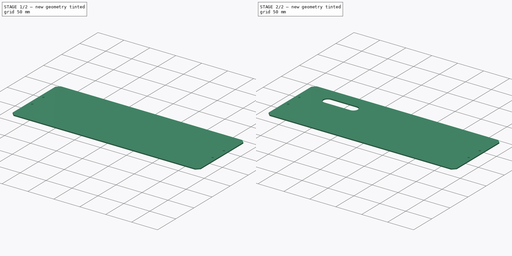
[diagram: build sequence overview — one tinted view per stage of 2, left to right]
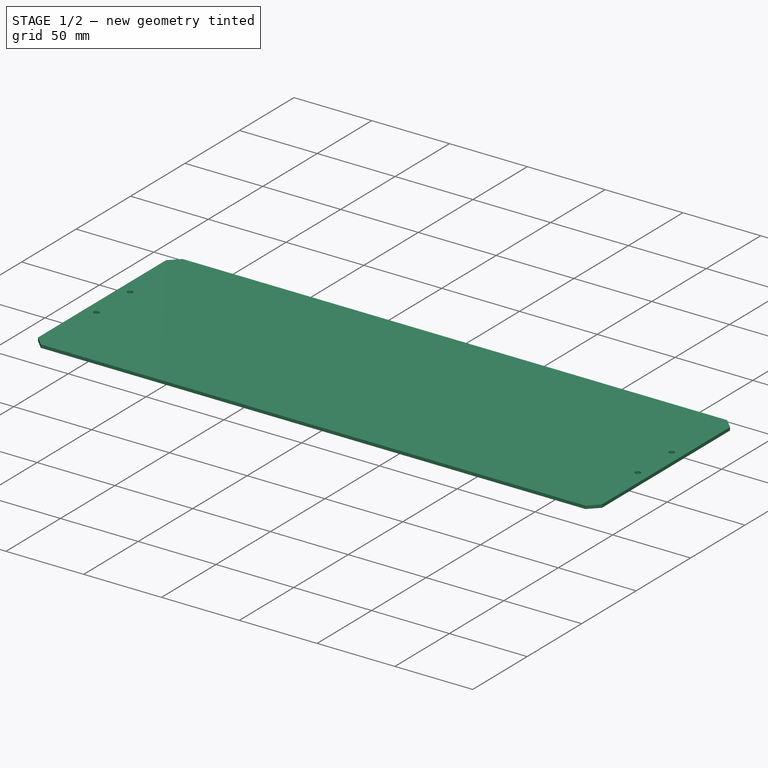
[diagram: stage 1 of 2 — iso view after this stage's code; geometry added in this stage tinted green]
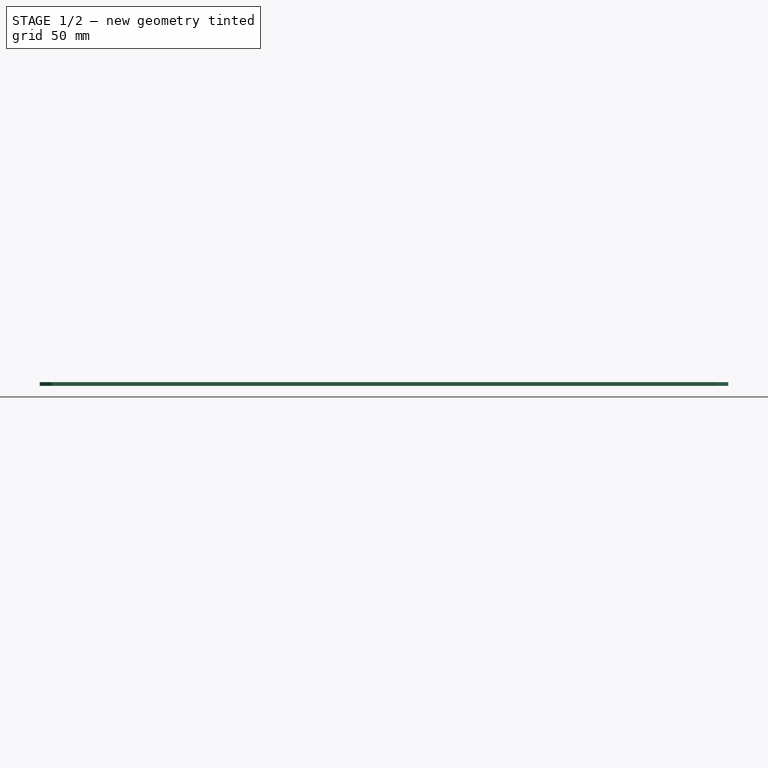
[diagram: stage 1 of 2 — front view after this stage's code; geometry added in this stage tinted green]
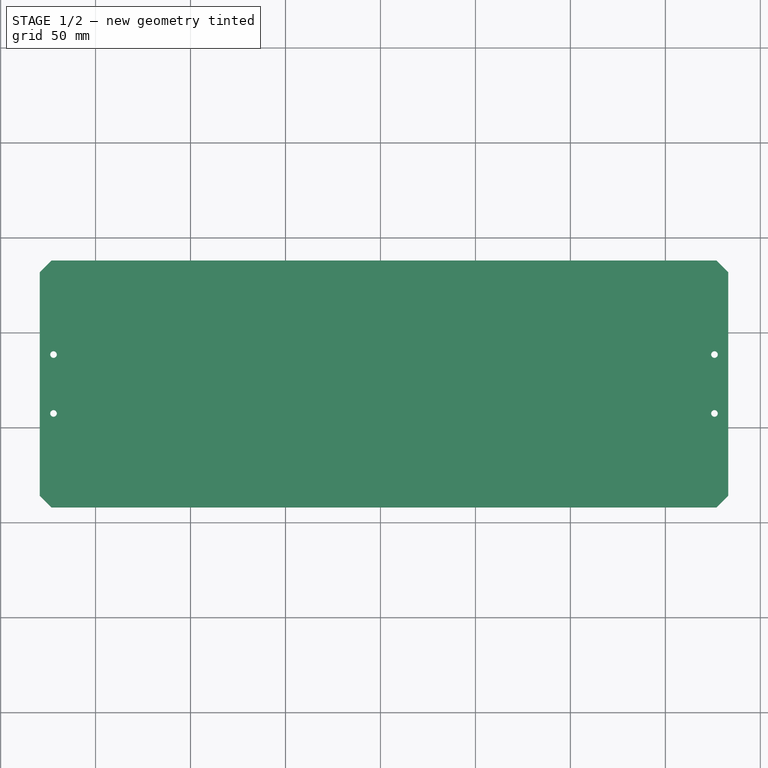
[diagram: stage 1 of 2 — top view after this stage's code; geometry added in this stage tinted green]
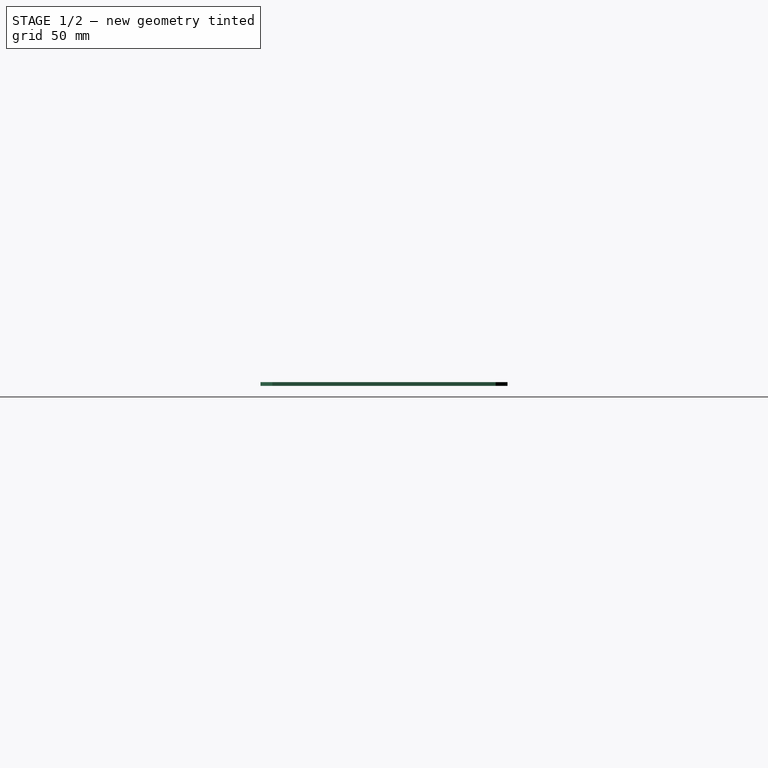
[diagram: stage 1 of 2 — right view after this stage's code; geometry added in this stage tinted green]
FCSTD DOCUMENT  (FreeCAD 0.20R29603 (Git))
Label: DCT_BOX
License: All rights reserved
LicenseURL: http://en.wikipedia.org/wiki/All_rights_reserved
objects: Part::Feature×1, PartDesign::FeatureBase×1, Sketcher::SketchObject×1, PartDesign::Pocket×1, PartDesign::Body×1
note: 6 computed .brp shape members not serialized (recipe doc carries the construction recipe); baked Part::Feature solids carry a one-line shape summary decoded from their .brp

FEATURE [Part::Feature] Part__Feature041  label="M5403038"
  Placement = pos=(-66.6357,-119.264,69.9309) rot=(0,0,1;0rad)
  shape: bbox 362.5 x 130 x 2 mm, 14 faces (baked)
FEATURE [PartDesign::FeatureBase] Clone
  BaseFeature = -> Part__Feature041
  Placement = pos=(-66.6357,-119.264,69.9309) rot=(0,0,1;0rad)
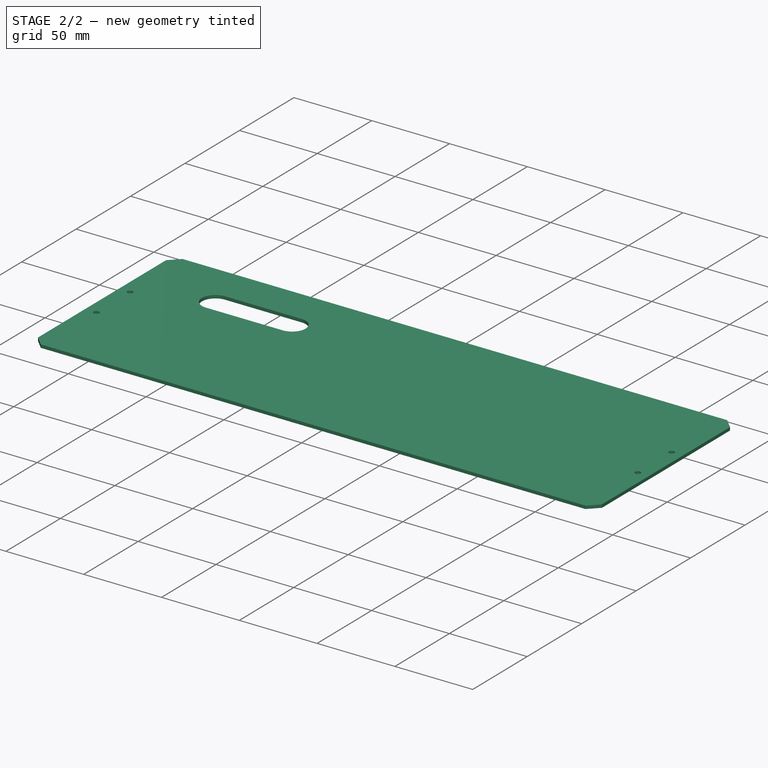
[diagram: stage 2 of 2 — iso view after this stage's code; geometry added in this stage tinted green]
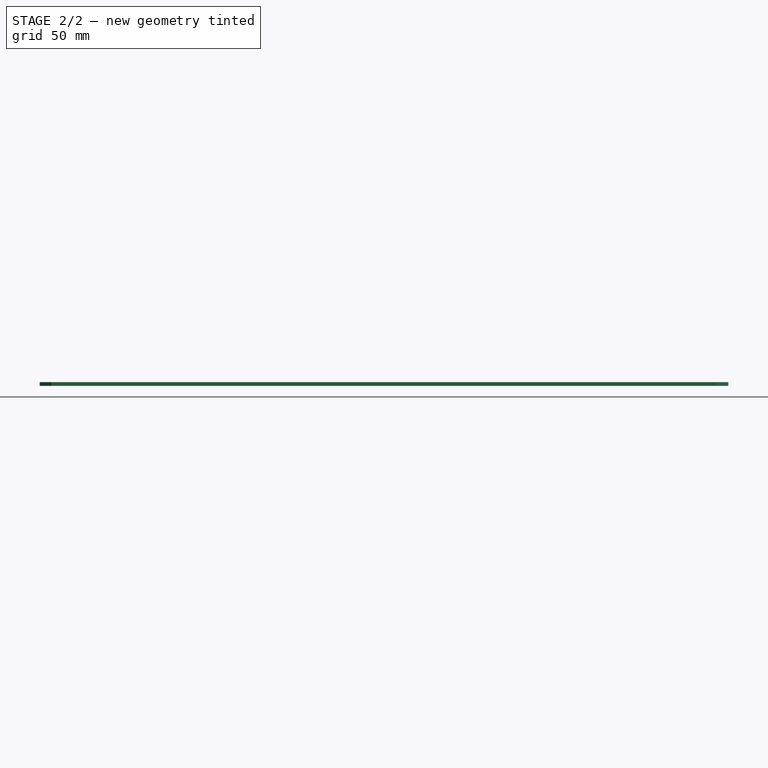
[diagram: stage 2 of 2 — front view after this stage's code; geometry added in this stage tinted green]
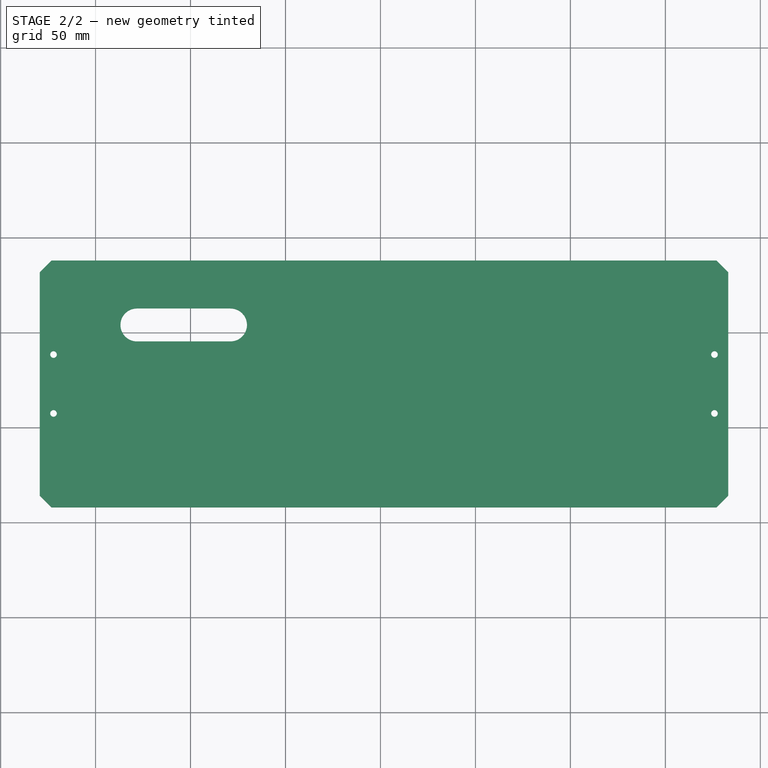
[diagram: stage 2 of 2 — top view after this stage's code; geometry added in this stage tinted green]
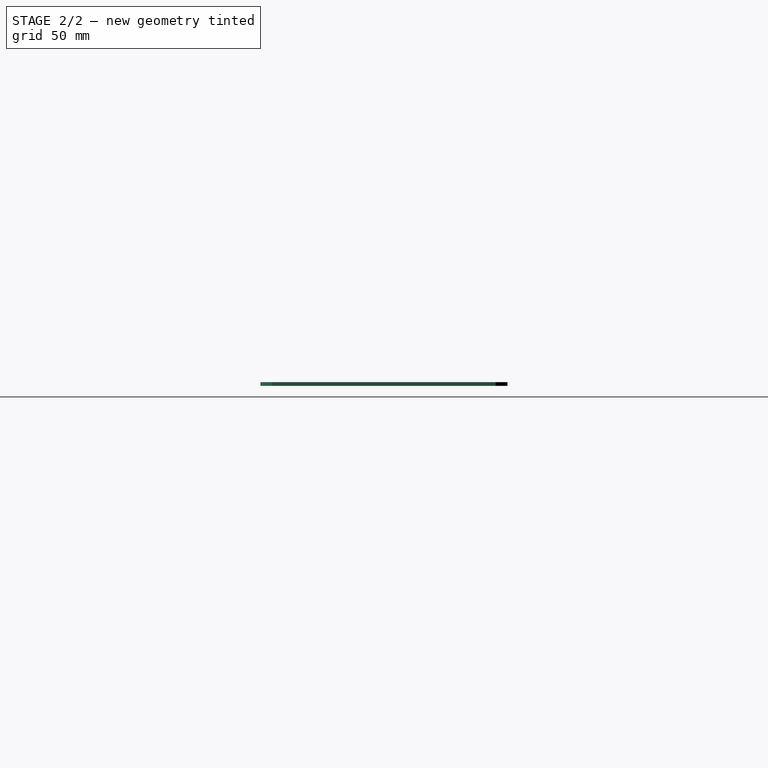
[diagram: stage 2 of 2 — right view after this stage's code; geometry added in this stage tinted green]
FEATURE [Sketcher::SketchObject] Sketch001  label="Slot"
  FullyConstrained = false
  MapMode = 5
  Placement = pos=(0,0,0) rot=(1,0,0;3.14159rad)
  sketch-geometry (19):
    g0: ArcOfCircle CenterX=-78.2345 CenterY=45.9296 CenterZ=0 NormalX=0 NormalY=0 NormalZ=1 AngleXU=0 Radius=8.66 StartAngle=1.5708 EndAngle=4.71239
    g1: ArcOfCircle CenterX=-28.9465 CenterY=45.9296 CenterZ=0 NormalX=0 NormalY=0 NormalZ=1 AngleXU=0 Radius=8.66 StartAngle=4.71239 EndAngle=7.85398
    g2: LineSegment StartX=-78.2345 StartY=37.2696 StartZ=0 EndX=-28.9465 EndY=37.2696 EndZ=0
    g3: LineSegment StartX=-28.9465 StartY=54.5896 StartZ=0 EndX=-78.2345 EndY=54.5896 EndZ=0
    g4: LineSegment StartX=-20.2865 StartY=36.0286 StartZ=0 EndX=-20.2865 EndY=55.8306 EndZ=0
    g5: LineSegment StartX=-86.8945 StartY=55.8306 StartZ=0 EndX=-86.8945 EndY=36.0286 EndZ=0
    g6: LineSegment StartX=-91.5735 StartY=55.8306 StartZ=0 EndX=-15.6075 EndY=55.8306 EndZ=0
    g7: LineSegment StartX=-15.6075 StartY=55.8306 StartZ=0 EndX=-15.6075 EndY=36.0286 EndZ=0
    g8: LineSegment StartX=-15.6075 StartY=36.0286 StartZ=0 EndX=-91.5735 EndY=36.0286 EndZ=0
    g9: LineSegment StartX=-91.5735 StartY=36.0286 StartZ=0 EndX=-91.5735 EndY=55.8306 EndZ=0
    g10: LineSegment StartX=-86.8945 StartY=45.9296 StartZ=0 EndX=-91.5735 EndY=45.9296 EndZ=0
    g11: LineSegment StartX=-20.2865 StartY=45.9296 StartZ=0 EndX=-15.6075 EndY=45.9296 EndZ=0
    g12: LineSegment StartX=-53.5905 StartY=54.5896 StartZ=0 EndX=-53.5905 EndY=55.8306 EndZ=0
    g13: LineSegment StartX=-53.5905 StartY=36.0286 StartZ=0 EndX=-53.5905 EndY=37.2696 EndZ=0
    g14: LineSegment StartX=-86.8945 StartY=45.9296 StartZ=0 EndX=-20.2865 EndY=45.9296 EndZ=0
    g15: LineSegment StartX=-53.5905 StartY=54.5896 StartZ=0 EndX=-53.5905 EndY=37.2696 EndZ=0
    g16: GeomPoint X=-53.5905 Y=45.9296 Z=0
    g17: LineSegment StartX=-20.2865 StartY=55.8306 StartZ=0 EndX=-53.5905 EndY=55.8306 EndZ=0
    g18: LineSegment StartX=-53.5905 StartY=55.8306 StartZ=0 EndX=-86.8945 EndY=55.8306 EndZ=0
  constraints (54):
    c: Tangent(g0,g2) = -1.5708
    c: Tangent(g2,g1) = -1.5708
    c: Tangent(g1,g3) = -1.5708
    c: Tangent(g3,g0) = -1.5708
    c: DistanceY(g1,g1) = 17.32
    c: Horizontal(g1,g0)
    c: Horizontal(g0,g1)
    c: Vertical(g4)
    c: Vertical(g5)
    c: Tangent(g5,g0)
    c: Tangent(g4,g1)
    c: Horizontal(g5,g4)
    c: DistanceX(g5,g4) = 66.608
    c: Coincident(g6,g7)
    c: Coincident(g7,g8)
    c: Coincident(g8,g9)
    c: Coincident(g9,g6)
    c: Horizontal(g6)
    c: Horizontal(g8)
    c: Vertical(g7)
    c: Vertical(g9)
    c: DistanceX(g6,g6) = 75.966
    c: DistanceY(g7,g7) = 19.802
    c: PointOnObject(g10,g5)
    c: PointOnObject(g10,g9)
    c: Horizontal(g10)
    c: PointOnObject(g11,g4)
    c: PointOnObject(g11,g7)
    c: Horizontal(g11)
    c: Equal(g11,g10)
    c: PointOnObject(g12,g3)
    c: PointOnObject(g12,g6)
    c: Vertical(g12)
    c: PointOnObject(g13,g8)
    c: PointOnObject(g13,g2)
    c: Vertical(g13)
    c: Equal(g13,g12)
    c: Equal(g5,g9)
    c: Horizontal(g5,g6)
    c: Horizontal(g0,g10)
    c: Horizontal(g1,g11)
    c: Coincident(g14,g10)
    c: Coincident(g14,g11)
    c: Coincident(g15,g12)
    c: Coincident(g15,g13)
    c: Vertical(g15)
    c: PointOnObject(g16,g14)
    c: Vertical(g16,g12)
    c: Horizontal(g4,g6)
    c: Coincident(g17,g4)
    c: Coincident(g17,g12)
    c: Coincident(g18,g12)
    c: Coincident(g18,g5)
    c: Equal(g17,g18)
FEATURE [PartDesign::Pocket] Pocket
  BaseFeature = -> Clone
  Direction = (0,0,1)
  Length = 5
  Length2 = 5
  Placement = pos=(-66.6357,-119.264,69.9309) rot=(0,0,1;0rad)
  Profile = -> Sketch001
  ReferenceAxis = -> Sketch001 [N_Axis]
  Type = 1
FEATURE [PartDesign::Body] Body
  Group = -> [Clone,Sketch001,Pocket]
  Origin = -> Origin
  Tip = -> Pocket
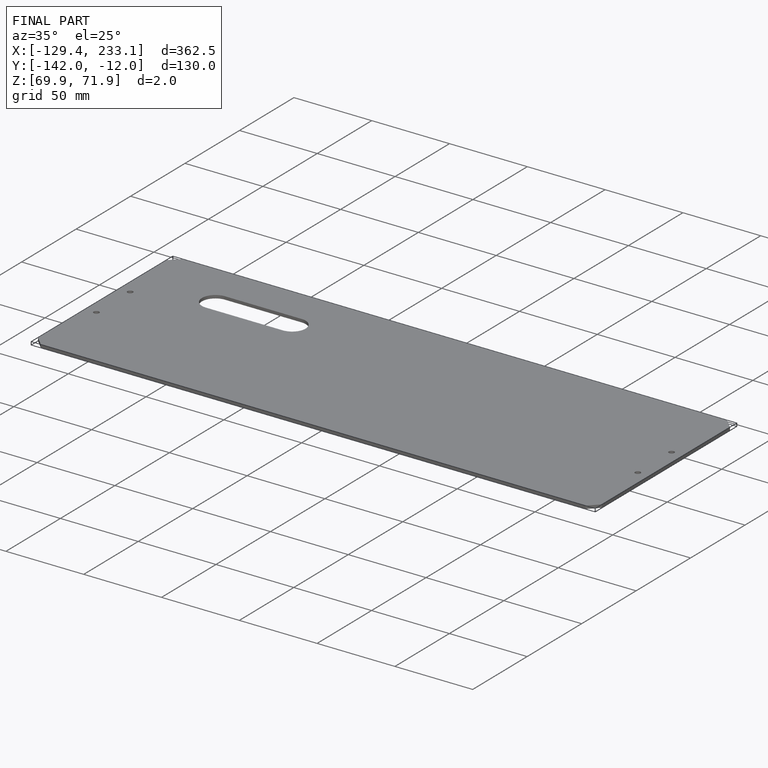
[diagram: finished part — iso view with bounding-box wireframe]
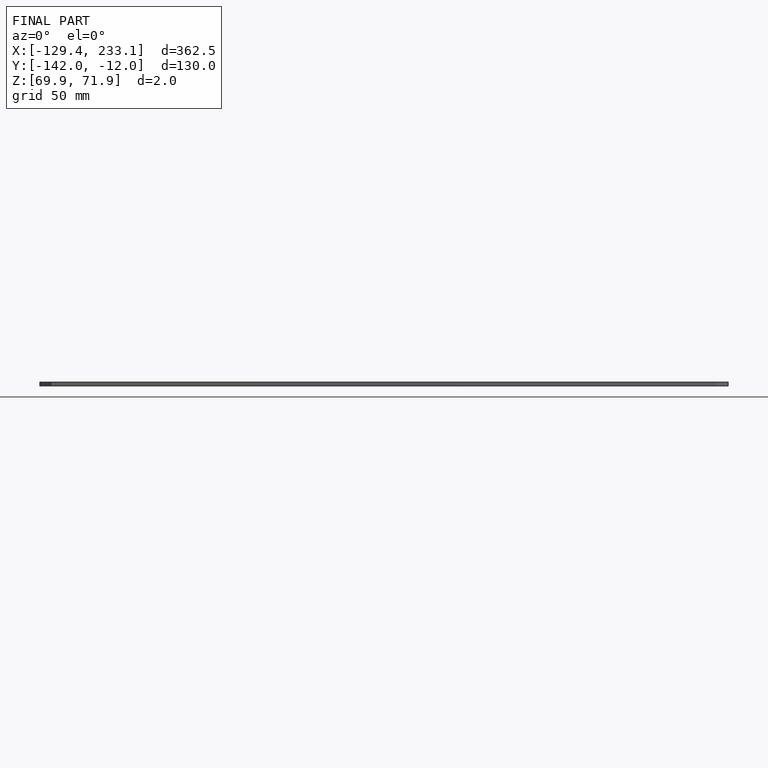
[diagram: finished part — front view with bounding-box wireframe]
